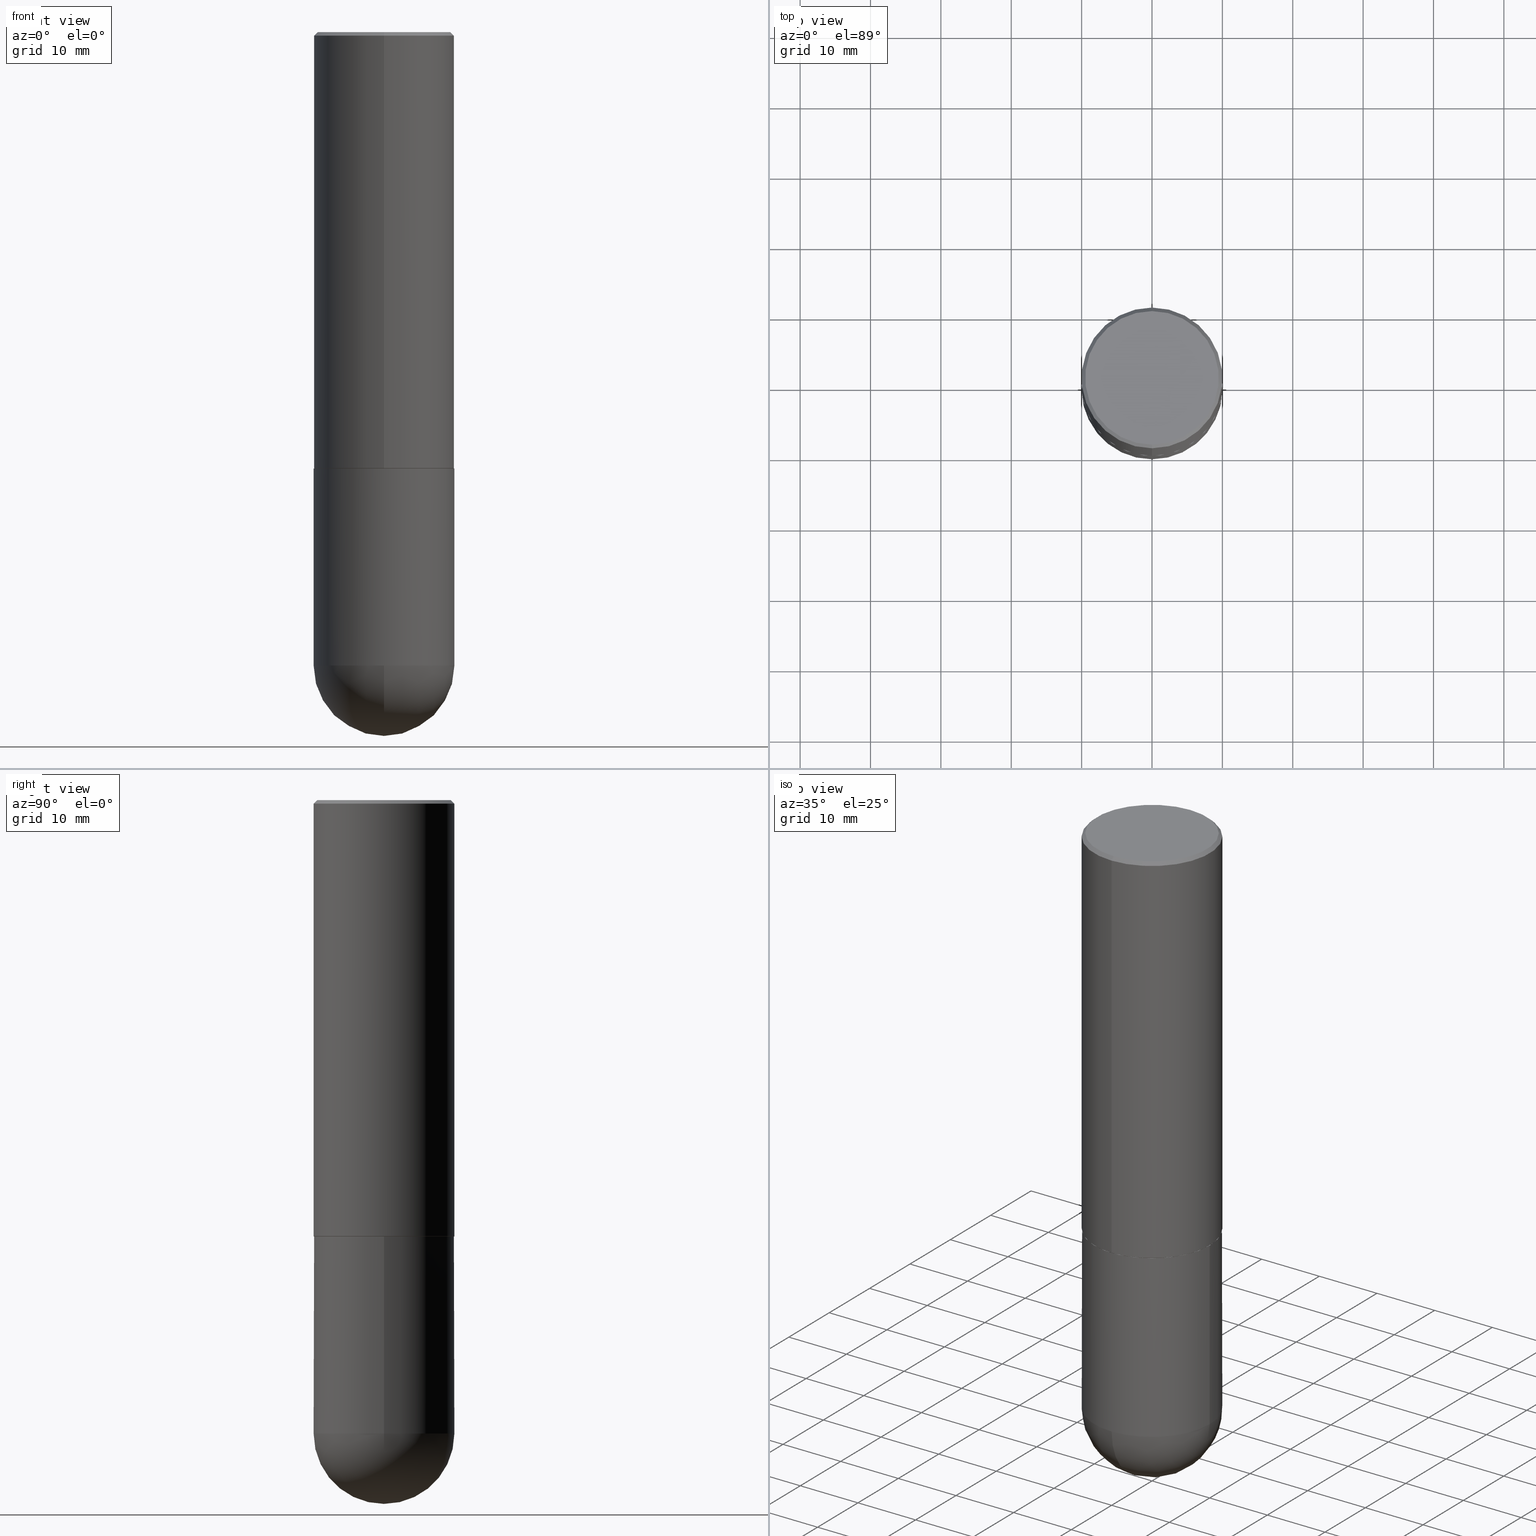
[diagram: canonical four-view strip — front | top / right | iso, engineering-drawing reading convention]
A machine part, canonical four-view strip (front | top / right | iso — engineering-drawing reading convention). The complete STEP part file that produces these views, byte-faithful:
ISO-10303-21;
HEADER;
FILE_DESCRIPTION (( 'STEP AP203' ),
    '1' );
FILE_NAME ('40382.STEP',
    '2024-04-10T11:41:13',
    ( '' ),
    ( '' ),
    'SwSTEP 2.0',
    'SolidWorks 2023',
    '' );
FILE_SCHEMA (( 'CONFIG_CONTROL_DESIGN' ));
ENDSEC;

DATA;
#1 = DIRECTION ( 'NONE',  ( 2.438088387897960049E-29, -3.491481338843145188E-15, -1.000000000000000000 ) ) ;
#2 = CARTESIAN_POINT ( 'NONE',  ( 0.000000000000000000, 0.000000000000000000, 0.000000000000000000 ) ) ;
#3 = ORIENTED_EDGE ( 'NONE', *, *, #237, .F. ) ;
#4 = FACE_OUTER_BOUND ( 'NONE', #405, .T. ) ;
#5 = CC_DESIGN_DATE_AND_TIME_ASSIGNMENT ( #190, #347, ( #282 ) ) ;
#6 = AXIS2_PLACEMENT_3D ( 'NONE', #310, #59, #408 ) ;
#7 = CIRCLE ( 'NONE', #30, 0.3937000000000001054 ) ;
#8 = CARTESIAN_POINT ( 'NONE',  ( 5.964323196596631600E-29, -8.522268091541027042E-15, -2.439900000000000180 ) ) ;
#9 = ORIENTED_EDGE ( 'NONE', *, *, #230, .F. ) ;
#10 = CARTESIAN_POINT ( 'NONE',  ( -2.749192406205025235E-15, -0.3937000000000088207, -2.439899999999998847 ) ) ;
#11 = DATE_AND_TIME ( #174, #74 ) ;
#12 = EDGE_CURVE ( 'NONE', #219, #132, #209, .T. ) ;
#13 = MECHANICAL_CONTEXT ( 'NONE', #255, 'mechanical' ) ;
#14 = AXIS2_PLACEMENT_3D ( 'NONE', #231, #171, #197 ) ;
#15 = CARTESIAN_POINT ( 'NONE',  ( 0.000000000000000000, 0.000000000000000000, 0.000000000000000000 ) ) ;
#16 = PERSON_AND_ORGANIZATION ( #376, #101 ) ;
#17 = PRODUCT_DEFINITION ( 'UNKNOWN', '', #196, #96 ) ;
#18 = PRODUCT_DEFINITION_SHAPE ( 'NONE', 'NONE',  #17 ) ;
#19 = COORDINATED_UNIVERSAL_TIME_OFFSET ( 5, 0, .BEHIND. ) ;
#20 = VECTOR ( 'NONE', #289, 39.37007874015748854 ) ;
#21 = VECTOR ( 'NONE', #320, 39.37007874015748854 ) ;
#22 = ORIENTED_EDGE ( 'NONE', *, *, #385, .F. ) ;
#23 = DATE_AND_TIME ( #181, #188 ) ;
#24 = CARTESIAN_POINT ( 'NONE',  ( 8.333909843041907822E-29, -1.284554819606296579E-14, -3.543299999999999894 ) ) ;
#25 = ORIENTED_EDGE ( 'NONE', *, *, #111, .T. ) ;
#26 = ADVANCED_FACE ( 'NONE', ( #198 ), #389, .T. ) ;
#27 = DIRECTION ( 'NONE',  ( -2.444494936922263557E-29, 3.492875975056775902E-15, 1.000000000000000000 ) ) ;
#28 = CARTESIAN_POINT ( 'NONE',  ( -0.3937000000000000499, -7.649454563265061811E-15, -2.440900000000000070 ) ) ;
#29 = VECTOR ( 'NONE', #62, 39.37007874015748143 ) ;
#30 = AXIS2_PLACEMENT_3D ( 'NONE', #294, #260, #140 ) ;
#31 = ORIENTED_EDGE ( 'NONE', *, *, #12, .T. ) ;
#32 = CARTESIAN_POINT ( 'NONE',  ( 8.333909843041907822E-29, -1.284554819606296579E-14, -3.543299999999999894 ) ) ;
#33 = EDGE_LOOP ( 'NONE', ( #374, #341, #109, #382 ) ) ;
#34 = CARTESIAN_POINT ( 'NONE',  ( -2.749192406205084005E-15, -0.3937000000000001609, 1.375145271379853145E-15 ) ) ;
#35 = ORIENTED_EDGE ( 'NONE', *, *, #309, .F. ) ;
#36 = DIRECTION ( 'NONE',  ( 1.000000000000000000, -6.982962677686267499E-15, 0.000000000000000000 ) ) ;
#37 = AXIS2_PLACEMENT_3D ( 'NONE', #24, #212, #283 ) ;
#38 = AXIS2_PLACEMENT_3D ( 'NONE', #326, #386, #36 ) ;
#39 = DIRECTION ( 'NONE',  ( -2.444494936922263557E-29, 3.492875975056775902E-15, 1.000000000000000000 ) ) ;
#40 = DIRECTION ( 'NONE',  ( -2.444494936922262996E-29, 3.492875975056776297E-15, 1.000000000000000000 ) ) ;
#41 = CARTESIAN_POINT ( 'NONE',  ( 2.749192406205083217E-15, 0.3936999999999999389, -0.02000000000000146452 ) ) ;
#42 = ORIENTED_EDGE ( 'NONE', *, *, #311, .F. ) ;
#43 = AXIS2_PLACEMENT_3D ( 'NONE', #194, #1, #296 ) ;
#44 = PLANE ( 'NONE',  #43 ) ;
#45 = CARTESIAN_POINT ( 'NONE',  ( 0.3937000000000001054, -1.319605372015766376E-14, -3.543299999999999450 ) ) ;
#46 = VERTEX_POINT ( 'NONE', #45 ) ;
#47 = APPROVAL_STATUS ( 'not_yet_approved' ) ;
#48 =( NAMED_UNIT ( * ) SI_UNIT ( $, .STERADIAN. ) SOLID_ANGLE_UNIT ( ) );
#49 = CALENDAR_DATE ( 2024, 10, 4 ) ;
#50 = AXIS2_PLACEMENT_3D ( 'NONE', #108, #399, #398 ) ;
#51 = DIRECTION ( 'NONE',  ( -2.444494936922263557E-29, 3.492875975056775902E-15, 1.000000000000000000 ) ) ;
#52 = DATE_AND_TIME ( #397, #69 ) ;
#53 = CARTESIAN_POINT ( 'NONE',  ( -0.3937000000000001054, -7.649454563265064966E-15, -3.543299999999999450 ) ) ;
#54 = CIRCLE ( 'NONE', #38, 0.3937000000000000499 ) ;
#55 = ORIENTED_EDGE ( 'NONE', *, *, #184, .F. ) ;
#56 = CARTESIAN_POINT ( 'NONE',  ( 2.749192406205169202E-15, 0.3936999999999876709, -3.543300000000000782 ) ) ;
#57 = EDGE_LOOP ( 'NONE', ( #242, #116 ) ) ;
#58 = DIRECTION ( 'NONE',  ( -6.982962677686265922E-15, -1.000000000000000000, 3.469453890861393601E-15 ) ) ;
#59 = DIRECTION ( 'NONE',  ( -2.444494936922263557E-29, 3.492875975056775902E-15, 1.000000000000000000 ) ) ;
#60 = AXIS2_PLACEMENT_3D ( 'NONE', #367, #51, #305 ) ;
#61 = AXIS2_PLACEMENT_3D ( 'NONE', #258, #39, #73 ) ;
#62 = DIRECTION ( 'NONE',  ( -4.851104656540961908E-15, -0.7071067811865496822, -0.7071067811865453523 ) ) ;
#63 = PRODUCT_RELATED_PRODUCT_CATEGORY ( 'detail', '', ( #114 ) ) ;
#64 = ORIENTED_EDGE ( 'NONE', *, *, #274, .F. ) ;
#65 = ORIENTED_EDGE ( 'NONE', *, *, #120, .T. ) ;
#66 = CARTESIAN_POINT ( 'NONE',  ( 0.3937000000000001054, -2.749192406205084005E-15, 1.919750796630860452E-29 ) ) ;
#67 = CARTESIAN_POINT ( 'NONE',  ( 0.000000000000000000, 0.000000000000000000, 0.000000000000000000 ) ) ;
#68 = AXIS2_PLACEMENT_3D ( 'NONE', #287, #27, #243 ) ;
#69 = LOCAL_TIME ( 7, 41, 13.00000000000000000, #241 ) ;
#70 = DIRECTION ( 'NONE',  ( -2.445468806185136597E-29, 3.491481338843145583E-15, 1.000000000000000000 ) ) ;
#71 = DIRECTION ( 'NONE',  ( 1.000000000000000000, -6.982962677686266711E-15, 0.000000000000000000 ) ) ;
#72 = DIRECTION ( 'NONE',  ( 1.000000000000000000, -6.982962677686266711E-15, 0.000000000000000000 ) ) ;
#73 = DIRECTION ( 'NONE',  ( -6.982962677686265133E-15, -1.000000000000000000, 3.478288761986584267E-15 ) ) ;
#74 = LOCAL_TIME ( 7, 41, 13.00000000000000000, #110 ) ;
#75 =( NAMED_UNIT ( * ) PLANE_ANGLE_UNIT ( ) SI_UNIT ( $, .RADIAN. ) );
#76 = PERSON_AND_ORGANIZATION ( #376, #101 ) ;
#77 = APPROVAL ( #146, 'UNSPECIFIED' ) ;
#78 = AXIS2_PLACEMENT_3D ( 'NONE', #157, #90, #187 ) ;
#79 = AXIS2_PLACEMENT_3D ( 'NONE', #15, #177, #239 ) ;
#80 = DIRECTION ( 'NONE',  ( 2.444494936922263557E-29, -3.492875975056775902E-15, -1.000000000000000000 ) ) ;
#81 = ORIENTED_EDGE ( 'NONE', *, *, #332, .F. ) ;
#82 = APPROVAL_ROLE ( '' ) ;
#84 = ADVANCED_FACE ( 'NONE', ( #324 ), #172, .T. ) ;
#83 = DIRECTION ( 'NONE',  ( 6.982962677686265133E-15, 1.000000000000000000, -3.491137977679279424E-15 ) ) ;
#85 = APPROVAL_PERSON_ORGANIZATION ( #234, #199, #145 ) ;
#86 = APPROVAL_DATE_TIME ( #23, #138 ) ;
#87 = ADVANCED_FACE ( 'NONE', ( #317 ), #353, .T. ) ;
#88 = LINE ( 'NONE', #180, #29 ) ;
#89 = VERTEX_POINT ( 'NONE', #220 ) ;
#90 = DIRECTION ( 'NONE',  ( -2.444494936922263557E-29, 3.492875975056775902E-15, 1.000000000000000000 ) ) ;
#91 = ORIENTED_EDGE ( 'NONE', *, *, #279, .F. ) ;
#92 = DIRECTION ( 'NONE',  ( 6.982962677686265133E-15, 1.000000000000000000, 0.000000000000000000 ) ) ;
#93 = CONICAL_SURFACE ( 'NONE', #148, 0.3937000000000000499, 0.7853981633974479459 ) ;
#94 = EDGE_LOOP ( 'NONE', ( #119, #300 ) ) ;
#95 = DIRECTION ( 'NONE',  ( 1.000000000000000000, -6.982962677686266711E-15, 4.876176775795935793E-29 ) ) ;
#96 = DESIGN_CONTEXT ( 'detailed design', #136, 'design' ) ;
#97 = CARTESIAN_POINT ( 'NONE',  ( 5.966767691533553792E-29, -8.525760967516085802E-15, -2.440900000000000514 ) ) ;
#98 = EDGE_CURVE ( 'NONE', #183, #236, #134, .T. ) ;
#99 = DIRECTION ( 'NONE',  ( -2.444494936922263557E-29, 3.492875975056775902E-15, 1.000000000000000000 ) ) ;
#100 = DIRECTION ( 'NONE',  ( -6.982962677686265133E-15, -1.000000000000000000, 3.478288761986584267E-15 ) ) ;
#101 = ORGANIZATION ( 'UNSPECIFIED', 'UNSPECIFIED', '' ) ;
#102 = DIRECTION ( 'NONE',  ( -2.444494936922263557E-29, 3.492875975056775902E-15, 1.000000000000000000 ) ) ;
#103 = ORIENTED_EDGE ( 'NONE', *, *, #235, .F. ) ;
#104 = DIRECTION ( 'NONE',  ( -2.445468806185136597E-29, 3.491481338843145583E-15, 1.000000000000000000 ) ) ;
#105 = ORIENTED_EDGE ( 'NONE', *, *, #12, .F. ) ;
#106 = CIRCLE ( 'NONE', #390, 0.3937000000000000499 ) ;
#107 = CIRCLE ( 'NONE', #228, 0.3937000000000001054 ) ;
#108 = CARTESIAN_POINT ( 'NONE',  ( 8.333909843041907822E-29, -1.284554819606296579E-14, -3.543299999999999894 ) ) ;
#109 = ORIENTED_EDGE ( 'NONE', *, *, #120, .F. ) ;
#110 = COORDINATED_UNIVERSAL_TIME_OFFSET ( 5, 0, .BEHIND. ) ;
#111 = EDGE_CURVE ( 'NONE', #133, #409, #88, .T. ) ;
#112 = AXIS2_PLACEMENT_3D ( 'NONE', #411, #290, #217 ) ;
#113 = APPROVAL_ROLE ( '' ) ;
#114 = PRODUCT ( '40382', '40382', '', ( #13 ) ) ;
#115 = APPROVAL_STATUS ( 'not_yet_approved' ) ;
#116 = ORIENTED_EDGE ( 'NONE', *, *, #155, .T. ) ;
#117 = ADVANCED_FACE ( 'NONE', ( #410 ), #245, .T. ) ;
#118 = LINE ( 'NONE', #185, #127 ) ;
#119 = ORIENTED_EDGE ( 'NONE', *, *, #385, .T. ) ;
#120 = EDGE_CURVE ( 'NONE', #349, #89, #252, .T. ) ;
#121 = DIRECTION ( 'NONE',  ( -2.444494936922263557E-29, 3.492875975056776297E-15, 1.000000000000000000 ) ) ;
#122 = APPROVAL_PERSON_ORGANIZATION ( #16, #77, #113 ) ;
#123 = DIRECTION ( 'NONE',  ( 1.000000000000000000, -6.982962677686265922E-15, 4.883557194083112340E-29 ) ) ;
#124 = PERSON_AND_ORGANIZATION ( #376, #101 ) ;
#125 = FACE_OUTER_BOUND ( 'NONE', #351, .T. ) ;
#126 = CARTESIAN_POINT ( 'NONE',  ( 5.964323196596631600E-29, -8.522268091541027042E-15, -2.439900000000000180 ) ) ;
#127 = VECTOR ( 'NONE', #159, 39.37007874015748143 ) ;
#128 = AXIS2_PLACEMENT_3D ( 'NONE', #322, #40, #225 ) ;
#129 = EDGE_LOOP ( 'NONE', ( #284, #25, #292, #186 ) ) ;
#130 = DIRECTION ( 'NONE',  ( -2.445468806185136877E-29, 3.491481338843145188E-15, 1.000000000000000000 ) ) ;
#131 = DIRECTION ( 'NONE',  ( 1.000000000000000000, -6.982962677686266711E-15, 4.876176775795935793E-29 ) ) ;
#132 = VERTEX_POINT ( 'NONE', #254 ) ;
#133 = VERTEX_POINT ( 'NONE', #404 ) ;
#134 = CIRCLE ( 'NONE', #297, 0.3937000000000000499 ) ;
#135 = AXIS2_PLACEMENT_3D ( 'NONE', #8, #102, #227 ) ;
#136 = APPLICATION_CONTEXT ( 'configuration controlled 3d designs of mechanical parts and assemblies' ) ;
#137 = LINE ( 'NONE', #166, #170 ) ;
#138 = APPROVAL ( #115, 'UNSPECIFIED' ) ;
#139 = EDGE_LOOP ( 'NONE', ( #359, #161, #223, #103 ) ) ;
#140 = DIRECTION ( 'NONE',  ( 1.000000000000000000, -6.982962677686266711E-15, 0.000000000000000000 ) ) ;
#141 = SPHERICAL_SURFACE ( 'NONE', #50, 0.3937000000000003830 ) ;
#142 = CIRCLE ( 'NONE', #68, 0.3737000000000001432 ) ;
#143 = AXIS2_PLACEMENT_3D ( 'NONE', #2, #192, #131 ) ;
#144 = PERSON_AND_ORGANIZATION ( #376, #101 ) ;
#145 = APPROVAL_ROLE ( '' ) ;
#146 = APPROVAL_STATUS ( 'not_yet_approved' ) ;
#147 = CIRCLE ( 'NONE', #288, 0.3937000000000003830 ) ;
#148 = AXIS2_PLACEMENT_3D ( 'NONE', #249, #80, #83 ) ;
#149 = CIRCLE ( 'NONE', #14, 0.3937000000000001054 ) ;
#150 = CARTESIAN_POINT ( 'NONE',  ( 5.969144809017300159E-29, -8.522356799982234543E-15, -2.440900000000000070 ) ) ;
#151 = ORIENTED_EDGE ( 'NONE', *, *, #311, .T. ) ;
#152 = FACE_OUTER_BOUND ( 'NONE', #57, .T. ) ;
#153 = AXIS2_PLACEMENT_3D ( 'NONE', #388, #357, #71 ) ;
#154 = DIRECTION ( 'NONE',  ( -1.000000000000000000, 6.982962677686265922E-15, -4.883557194083112340E-29 ) ) ;
#155 = EDGE_CURVE ( 'NONE', #133, #293, #345, .T. ) ;
#156 = ORIENTED_EDGE ( 'NONE', *, *, #98, .F. ) ;
#157 = CARTESIAN_POINT ( 'NONE',  ( 4.888989873844550270E-31, -6.985751950113581979E-17, -0.02000000000000009062 ) ) ;
#158 = ORIENTED_EDGE ( 'NONE', *, *, #164, .F. ) ;
#159 = DIRECTION ( 'NONE',  ( -2.445468806185136877E-29, 3.491481338843145188E-15, 1.000000000000000000 ) ) ;
#160 = ORIENTED_EDGE ( 'NONE', *, *, #195, .F. ) ;
#161 = ORIENTED_EDGE ( 'NONE', *, *, #270, .T. ) ;
#162 = FACE_OUTER_BOUND ( 'NONE', #308, .T. ) ;
#163 =( GEOMETRIC_REPRESENTATION_CONTEXT ( 3 ) GLOBAL_UNCERTAINTY_ASSIGNED_CONTEXT ( ( #395 ) ) GLOBAL_UNIT_ASSIGNED_CONTEXT ( ( #273, #75, #48 ) ) REPRESENTATION_CONTEXT ( 'NONE', 'WORKASPACE' ) );
#164 = EDGE_CURVE ( 'NONE', #219, #183, #118, .T. ) ;
#165 = DIRECTION ( 'NONE',  ( -6.982962677686265133E-15, -1.000000000000000000, 3.478288761986584267E-15 ) ) ;
#166 = CARTESIAN_POINT ( 'NONE',  ( 2.797406750687515181E-15, 0.3937000000000001609, -1.375145271379853145E-15 ) ) ;
#167 = DIRECTION ( 'NONE',  ( 4.937700262164545676E-15, 0.7071067811865447972, -0.7071067811865502373 ) ) ;
#168 = ADVANCED_FACE ( 'NONE', ( #371 ), #314, .T. ) ;
#169 = CIRCLE ( 'NONE', #37, 0.3937000000000003830 ) ;
#170 = VECTOR ( 'NONE', #352, 39.37007874015748143 ) ;
#171 = DIRECTION ( 'NONE',  ( -2.445468806185136597E-29, 3.491481338843145583E-15, 1.000000000000000000 ) ) ;
#172 = CYLINDRICAL_SURFACE ( 'NONE', #60, 0.3937000000000001609 ) ;
#173 = EDGE_LOOP ( 'NONE', ( #158, #31, #265, #250, #156 ) ) ;
#174 = CALENDAR_DATE ( 2024, 10, 4 ) ;
#175 = PERSON_AND_ORGANIZATION ( #376, #101 ) ;
#176 = CARTESIAN_POINT ( 'NONE',  ( 5.966767691533553792E-29, -8.525760967516085802E-15, -2.440900000000000514 ) ) ;
#177 = DIRECTION ( 'NONE',  ( 0.000000000000000000, 0.000000000000000000, 1.000000000000000000 ) ) ;
#178 = DATE_TIME_ROLE ( 'creation_date' ) ;
#179 = APPROVAL_PERSON_ORGANIZATION ( #124, #138, #82 ) ;
#180 = CARTESIAN_POINT ( 'NONE',  ( -2.700978061722651252E-15, -0.3937000000000001054, -0.01999999999999871672 ) ) ;
#181 = CALENDAR_DATE ( 2024, 10, 4 ) ;
#182 = CARTESIAN_POINT ( 'NONE',  ( 2.609533152651358592E-15, 0.3737000000000001432, -1.413874232599761583E-15 ) ) ;
#183 = VERTEX_POINT ( 'NONE', #28 ) ;
#184 = EDGE_CURVE ( 'NONE', #409, #344, #261, .T. ) ;
#185 = CARTESIAN_POINT ( 'NONE',  ( -0.3937000000000001054, 2.797406750687515181E-15, -1.936584745033357016E-29 ) ) ;
#186 = ORIENTED_EDGE ( 'NONE', *, *, #356, .F. ) ;
#187 = DIRECTION ( 'NONE',  ( -6.982962677686265133E-15, -1.000000000000000000, 3.491137977679279424E-15 ) ) ;
#188 = LOCAL_TIME ( 7, 41, 13.00000000000000000, #216 ) ;
#189 = ORIENTED_EDGE ( 'NONE', *, *, #235, .T. ) ;
#190 = DATE_AND_TIME ( #49, #298 ) ;
#191 = DIRECTION ( 'NONE',  ( 6.982962677686265922E-15, 1.000000000000000000, -3.492875975056776297E-15 ) ) ;
#192 = DIRECTION ( 'NONE',  ( -2.445468806185136597E-29, 3.491481338843145583E-15, 1.000000000000000000 ) ) ;
#193 = EDGE_CURVE ( 'NONE', #213, #132, #169, .T. ) ;
#194 = CARTESIAN_POINT ( 'NONE',  ( 2.749192406205142776E-15, 0.3936999999999915012, -2.440900000000001402 ) ) ;
#195 = EDGE_CURVE ( 'NONE', #293, #133, #142, .T. ) ;
#196 = PRODUCT_DEFINITION_FORMATION_WITH_SPECIFIED_SOURCE ( 'ANY', '', #114, .NOT_KNOWN. ) ;
#197 = DIRECTION ( 'NONE',  ( 1.000000000000000000, -6.982962677686266711E-15, 0.000000000000000000 ) ) ;
#198 = FACE_OUTER_BOUND ( 'NONE', #33, .T. ) ;
#199 = APPROVAL ( #47, 'UNSPECIFIED' ) ;
#200 = CYLINDRICAL_SURFACE ( 'NONE', #240, 0.3937000000000001054 ) ;
#201 = DIMENSIONAL_EXPONENTS ( 1.000000000000000000, 0.000000000000000000, 0.000000000000000000, 0.000000000000000000, 0.000000000000000000, 0.000000000000000000, 0.000000000000000000 ) ;
#202 = EDGE_LOOP ( 'NONE', ( #65, #278, #55, #3 ) ) ;
#203 = ADVANCED_FACE ( 'NONE', ( #125 ), #93, .T. ) ;
#204 = FACE_OUTER_BOUND ( 'NONE', #248, .T. ) ;
#205 = PERSON_AND_ORGANIZATION_ROLE ( 'creator' ) ;
#206 = PERSON_AND_ORGANIZATION_ROLE ( 'design_owner' ) ;
#207 = PERSON_AND_ORGANIZATION_ROLE ( 'classification_officer' ) ;
#208 = MANIFOLD_SOLID_BREP ( 'Body-Move/Copy2[1]', #281 ) ;
#209 = CIRCLE ( 'NONE', #153, 0.3937000000000001054 ) ;
#210 = CONICAL_SURFACE ( 'NONE', #263, 0.3926999999999999935, 0.7853981633974141952 ) ;
#211 = CC_DESIGN_PERSON_AND_ORGANIZATION_ASSIGNMENT ( #144, #238, ( #196 ) ) ;
#212 = DIRECTION ( 'NONE',  ( -1.000000000000000000, 7.105427357601001070E-15, -4.926315508542082329E-29 ) ) ;
#213 = VERTEX_POINT ( 'NONE', #348 ) ;
#214 = MANIFOLD_SOLID_BREP ( 'Body-Move/Copy2[2]', #333 ) ;
#215 = VECTOR ( 'NONE', #121, 39.37007874015748143 ) ;
#216 = COORDINATED_UNIVERSAL_TIME_OFFSET ( 5, 0, .BEHIND. ) ;
#217 = DIRECTION ( 'NONE',  ( -6.982962677686265922E-15, -1.000000000000000000, 3.492875975056775508E-15 ) ) ;
#218 = CARTESIAN_POINT ( 'NONE',  ( 8.333909843041907822E-29, -1.284554819606296579E-14, -3.543299999999999894 ) ) ;
#219 = VERTEX_POINT ( 'NONE', #53 ) ;
#220 = CARTESIAN_POINT ( 'NONE',  ( 2.797406750687545552E-15, 0.3936999999999917788, -2.439900000000001512 ) ) ;
#221 = VERTEX_POINT ( 'NONE', #56 ) ;
#222 = DIRECTION ( 'NONE',  ( 6.982962677686265922E-15, 1.000000000000000000, -4.163344669033671690E-15 ) ) ;
#223 = ORIENTED_EDGE ( 'NONE', *, *, #237, .T. ) ;
#224 = ADVANCED_FACE ( 'NONE', ( #152 ), #378, .F. ) ;
#225 = DIRECTION ( 'NONE',  ( -6.982962677686265922E-15, -1.000000000000000000, 3.492875975056776297E-15 ) ) ;
#226 = CARTESIAN_POINT ( 'NONE',  ( 8.665029620955792948E-29, -1.237136582792291707E-14, -3.543299999999999450 ) ) ;
#227 = DIRECTION ( 'NONE',  ( -6.982962677686265922E-15, -1.000000000000000000, 3.469453890861393601E-15 ) ) ;
#228 = AXIS2_PLACEMENT_3D ( 'NONE', #226, #104, #72 ) ;
#229 = ORIENTED_EDGE ( 'NONE', *, *, #164, .T. ) ;
#230 = EDGE_CURVE ( 'NONE', #213, #221, #147, .T. ) ;
#231 = CARTESIAN_POINT ( 'NONE',  ( 8.665029620955792948E-29, -1.237136582792291707E-14, -3.543299999999999450 ) ) ;
#232 = LINE ( 'NONE', #391, #21 ) ;
#233 = AXIS2_PLACEMENT_3D ( 'NONE', #32, #154, #222 ) ;
#234 = PERSON_AND_ORGANIZATION ( #376, #101 ) ;
#235 = EDGE_CURVE ( 'NONE', #344, #409, #106, .T. ) ;
#236 = VERTEX_POINT ( 'NONE', #406 ) ;
#237 = EDGE_CURVE ( 'NONE', #349, #409, #319, .T. ) ;
#238 = PERSON_AND_ORGANIZATION_ROLE ( 'design_supplier' ) ;
#239 = DIRECTION ( 'NONE',  ( 1.000000000000000000, 0.000000000000000000, 0.000000000000000000 ) ) ;
#240 = AXIS2_PLACEMENT_3D ( 'NONE', #67, #70, #95 ) ;
#241 = COORDINATED_UNIVERSAL_TIME_OFFSET ( 5, 0, .BEHIND. ) ;
#242 = ORIENTED_EDGE ( 'NONE', *, *, #195, .T. ) ;
#243 = DIRECTION ( 'NONE',  ( -6.982962677686265922E-15, -1.000000000000000000, 3.492875975056776297E-15 ) ) ;
#244 = VERTEX_POINT ( 'NONE', #246 ) ;
#245 = CONICAL_SURFACE ( 'NONE', #400, 0.3937000000000000499, 0.7853981633974479459 ) ;
#246 = CARTESIAN_POINT ( 'NONE',  ( 2.793854037008774630E-15, 0.3926999999999915003, -2.440900000000001846 ) ) ;
#247 = DIRECTION ( 'NONE',  ( -2.444494936922263557E-29, 3.492875975056775902E-15, 1.000000000000000000 ) ) ;
#248 = EDGE_LOOP ( 'NONE', ( #387, #229, #22, #91, #363 ) ) ;
#249 = CARTESIAN_POINT ( 'NONE',  ( 4.888989873844550270E-31, -6.985751950113581979E-17, -0.02000000000000009062 ) ) ;
#250 = ORIENTED_EDGE ( 'NONE', *, *, #279, .T. ) ;
#251 = CC_DESIGN_PERSON_AND_ORGANIZATION_ASSIGNMENT ( #271, #206, ( #114 ) ) ;
#252 = CIRCLE ( 'NONE', #275, 0.3937000000000002720 ) ;
#253 = CIRCLE ( 'NONE', #321, 0.3926999999999999935 ) ;
#254 = CARTESIAN_POINT ( 'NONE',  ( -2.797406750687430773E-15, -0.3937000000000128175, -3.543299999999997674 ) ) ;
#255 = APPLICATION_CONTEXT ( 'configuration controlled 3d designs of mechanical parts and assemblies' ) ;
#256 = ADVANCED_FACE ( 'NONE', ( #373 ), #375, .F. ) ;
#257 = FACE_OUTER_BOUND ( 'NONE', #94, .T. ) ;
#258 = CARTESIAN_POINT ( 'NONE',  ( 5.966767691533553792E-29, -8.525760967516085802E-15, -2.440900000000000514 ) ) ;
#259 = ORIENTED_EDGE ( 'NONE', *, *, #270, .F. ) ;
#260 = DIRECTION ( 'NONE',  ( -2.445468806185136597E-29, 3.491481338843145583E-15, 1.000000000000000000 ) ) ;
#261 = CIRCLE ( 'NONE', #78, 0.3937000000000000499 ) ;
#262 = ADVANCED_FACE ( 'NONE', ( #257 ), #44, .F. ) ;
#263 = AXIS2_PLACEMENT_3D ( 'NONE', #97, #99, #323 ) ;
#264 = CARTESIAN_POINT ( 'NONE',  ( 2.679362779428221102E-15, 0.3737000000000001432, -1.522460713320805199E-15 ) ) ;
#265 = ORIENTED_EDGE ( 'NONE', *, *, #332, .T. ) ;
#266 = CALENDAR_DATE ( 2024, 10, 4 ) ;
#267 =( LENGTH_UNIT ( ) NAMED_UNIT ( * ) SI_UNIT ( $, .METRE. ) );
#268 = AXIS2_PLACEMENT_3D ( 'NONE', #176, #327, #100 ) ;
#269 = EDGE_LOOP ( 'NONE', ( #9, #313, #105, #64 ) ) ;
#270 = EDGE_CURVE ( 'NONE', #89, #349, #369, .T. ) ;
#271 = PERSON_AND_ORGANIZATION ( #376, #101 ) ;
#272 = CC_DESIGN_PERSON_AND_ORGANIZATION_ASSIGNMENT ( #175, #205, ( #17 ) ) ;
#273 =( CONVERSION_BASED_UNIT ( 'INCH', #370 ) LENGTH_UNIT ( ) NAMED_UNIT ( #201 ) );
#274 = EDGE_CURVE ( 'NONE', #221, #219, #149, .T. ) ;
#275 = AXIS2_PLACEMENT_3D ( 'NONE', #126, #312, #58 ) ;
#276 = ORIENTED_EDGE ( 'NONE', *, *, #356, .T. ) ;
#277 = DIRECTION ( 'NONE',  ( -6.982962677686265133E-15, -1.000000000000000000, 3.491137977679279424E-15 ) ) ;
#278 = ORIENTED_EDGE ( 'NONE', *, *, #304, .T. ) ;
#279 = EDGE_CURVE ( 'NONE', #46, #236, #299, .T. ) ;
#280 = DIRECTION ( 'NONE',  ( 2.444494936922262996E-29, -3.492875975056776297E-15, -1.000000000000000000 ) ) ;
#281 = CLOSED_SHELL ( 'NONE', ( #383, #168, #402, #262, #339 ) ) ;
#282 = SECURITY_CLASSIFICATION ( '', '', #368 ) ;
#283 = DIRECTION ( 'NONE',  ( -7.105427357600999492E-15, -1.000000000000000000, 0.000000000000000000 ) ) ;
#284 = ORIENTED_EDGE ( 'NONE', *, *, #155, .F. ) ;
#285 = CC_DESIGN_PERSON_AND_ORGANIZATION_ASSIGNMENT ( #329, #366, ( #196 ) ) ;
#286 = ORIENTED_EDGE ( 'NONE', *, *, #193, .F. ) ;
#287 = CARTESIAN_POINT ( 'NONE',  ( 5.308782046815965529E-45, -7.585582194529983900E-31, -2.171729614420873553E-16 ) ) ;
#288 = AXIS2_PLACEMENT_3D ( 'NONE', #218, #123, #92 ) ;
#289 = DIRECTION ( 'NONE',  ( 5.024295867787889629E-15, 0.7071067811865257013, 0.7071067811865691111 ) ) ;
#290 = DIRECTION ( 'NONE',  ( -2.444494936922263557E-29, 3.492875975056775902E-15, 1.000000000000000000 ) ) ;
#291 = CYLINDRICAL_SURFACE ( 'NONE', #143, 0.3937000000000001054 ) ;
#292 = ORIENTED_EDGE ( 'NONE', *, *, #184, .T. ) ;
#293 = VERTEX_POINT ( 'NONE', #264 ) ;
#294 = CARTESIAN_POINT ( 'NONE',  ( 8.665029620955792948E-29, -1.237136582792291707E-14, -3.543299999999999450 ) ) ;
#295 = ORIENTED_EDGE ( 'NONE', *, *, #335, .T. ) ;
#296 = DIRECTION ( 'NONE',  ( -1.000000000000000000, 6.982962677686265922E-15, -4.876176775795935793E-29 ) ) ;
#297 = AXIS2_PLACEMENT_3D ( 'NONE', #150, #412, #340 ) ;
#298 = LOCAL_TIME ( 7, 41, 13.00000000000000000, #331 ) ;
#299 = LINE ( 'NONE', #66, #380 ) ;
#300 = ORIENTED_EDGE ( 'NONE', *, *, #98, .T. ) ;
#301 = APPROVAL_DATE_TIME ( #394, #199 ) ;
#302 = APPLICATION_PROTOCOL_DEFINITION ( 'international standard', 'config_control_design', 1994, #255 ) ;
#303 = LOCAL_TIME ( 7, 41, 13.00000000000000000, #19 ) ;
#304 = EDGE_CURVE ( 'NONE', #89, #344, #137, .T. ) ;
#305 = DIRECTION ( 'NONE',  ( -6.982962677686265922E-15, -1.000000000000000000, 3.492875975056775508E-15 ) ) ;
#306 = APPLICATION_PROTOCOL_DEFINITION ( 'international standard', 'config_control_design', 1994, #136 ) ;
#307 = CIRCLE ( 'NONE', #61, 0.3926999999999999935 ) ;
#308 = EDGE_LOOP ( 'NONE', ( #35, #151, #295, #259 ) ) ;
#309 = EDGE_CURVE ( 'NONE', #244, #89, #358, .T. ) ;
#310 = CARTESIAN_POINT ( 'NONE',  ( 5.308782046815965529E-45, -7.585582194529983900E-31, -2.171729614420873553E-16 ) ) ;
#311 = EDGE_CURVE ( 'NONE', #244, #318, #307, .T. ) ;
#312 = DIRECTION ( 'NONE',  ( -2.444494936922263557E-29, 3.492875975056775902E-15, 1.000000000000000000 ) ) ;
#313 = ORIENTED_EDGE ( 'NONE', *, *, #193, .T. ) ;
#314 = SPHERICAL_SURFACE ( 'NONE', #233, 0.3937000000000003830 ) ;
#315 = CC_DESIGN_SECURITY_CLASSIFICATION ( #282, ( #196 ) ) ;
#316 = DIRECTION ( 'NONE',  ( 6.982962677686265133E-15, 1.000000000000000000, -3.491137977679279424E-15 ) ) ;
#317 = FACE_OUTER_BOUND ( 'NONE', #202, .T. ) ;
#318 = VERTEX_POINT ( 'NONE', #362 ) ;
#319 = LINE ( 'NONE', #34, #215 ) ;
#320 = DIRECTION ( 'NONE',  ( -4.937700262164378437E-15, -0.7071067811865208164, 0.7071067811865739960 ) ) ;
#321 = AXIS2_PLACEMENT_3D ( 'NONE', #393, #384, #165 ) ;
#322 = CARTESIAN_POINT ( 'NONE',  ( 5.966767691533553792E-29, -8.525760967516084225E-15, -2.440900000000000070 ) ) ;
#323 = DIRECTION ( 'NONE',  ( -6.982962677686265133E-15, -1.000000000000000000, 3.478288761986584267E-15 ) ) ;
#324 = FACE_OUTER_BOUND ( 'NONE', #139, .T. ) ;
#325 = LINE ( 'NONE', #381, #407 ) ;
#326 = CARTESIAN_POINT ( 'NONE',  ( 5.969144809017300159E-29, -8.522356799982234543E-15, -2.440900000000000070 ) ) ;
#327 = DIRECTION ( 'NONE',  ( -2.444494936922263557E-29, 3.492875975056775902E-15, 1.000000000000000000 ) ) ;
#328 = EDGE_CURVE ( 'NONE', #46, #221, #7, .T. ) ;
#329 = PERSON_AND_ORGANIZATION ( #376, #101 ) ;
#330 = APPROVAL_DATE_TIME ( #11, #77 ) ;
#331 = COORDINATED_UNIVERSAL_TIME_OFFSET ( 5, 0, .BEHIND. ) ;
#332 = EDGE_CURVE ( 'NONE', #132, #46, #107, .T. ) ;
#333 = CLOSED_SHELL ( 'NONE', ( #26, #87, #117, #203, #84, #401, #256, #224 ) ) ;
#334 = CC_DESIGN_APPROVAL ( #138, ( #282 ) ) ;
#335 = EDGE_CURVE ( 'NONE', #318, #349, #232, .T. ) ;
#336 = CARTESIAN_POINT ( 'NONE',  ( -2.700978061722651252E-15, -0.3937000000000001054, -0.01999999999999871672 ) ) ;
#337 = SHAPE_DEFINITION_REPRESENTATION ( #18, #360 ) ;
#338 = CARTESIAN_POINT ( 'NONE',  ( 4.888989873844550270E-31, -6.985751950113581979E-17, -0.02000000000000009062 ) ) ;
#339 = ADVANCED_FACE ( 'NONE', ( #350 ), #200, .T. ) ;
#340 = DIRECTION ( 'NONE',  ( 1.000000000000000000, -6.982962677686267499E-15, 0.000000000000000000 ) ) ;
#341 = ORIENTED_EDGE ( 'NONE', *, *, #309, .T. ) ;
#342 = DIRECTION ( 'NONE',  ( 2.444494936922263557E-29, -3.492875975056775902E-15, -1.000000000000000000 ) ) ;
#343 = CARTESIAN_POINT ( 'NONE',  ( 4.888989873844550270E-31, -6.985751950113581979E-17, -0.02000000000000009062 ) ) ;
#344 = VERTEX_POINT ( 'NONE', #41 ) ;
#345 = CIRCLE ( 'NONE', #6, 0.3737000000000001432 ) ;
#346 = ORIENTED_EDGE ( 'NONE', *, *, #230, .T. ) ;
#347 = DATE_TIME_ROLE ( 'classification_date' ) ;
#348 = CARTESIAN_POINT ( 'NONE',  ( 9.313524860439493426E-29, -1.419603722692429674E-14, -3.937000000000000277 ) ) ;
#349 = VERTEX_POINT ( 'NONE', #10 ) ;
#350 = FACE_OUTER_BOUND ( 'NONE', #173, .T. ) ;
#351 = EDGE_LOOP ( 'NONE', ( #365, #160, #276, #189 ) ) ;
#352 = DIRECTION ( 'NONE',  ( -2.444494936922263557E-29, 3.492875975056776297E-15, 1.000000000000000000 ) ) ;
#353 = CYLINDRICAL_SURFACE ( 'NONE', #112, 0.3937000000000001609 ) ;
#354 = CC_DESIGN_APPROVAL ( #199, ( #196 ) ) ;
#355 = CARTESIAN_POINT ( 'NONE',  ( 2.790301323329972943E-15, 0.3926999999999915003, -2.440900000000001846 ) ) ;
#356 = EDGE_CURVE ( 'NONE', #293, #344, #325, .T. ) ;
#357 = DIRECTION ( 'NONE',  ( -2.445468806185136597E-29, 3.491481338843145583E-15, 1.000000000000000000 ) ) ;
#358 = LINE ( 'NONE', #355, #20 ) ;
#359 = ORIENTED_EDGE ( 'NONE', *, *, #304, .F. ) ;
#360 = ADVANCED_BREP_SHAPE_REPRESENTATION ( '40382', ( #208, #214, #79 ), #163 ) ;
#361 = CC_DESIGN_DATE_AND_TIME_ASSIGNMENT ( #52, #178, ( #17 ) ) ;
#362 = CARTESIAN_POINT ( 'NONE',  ( -2.742209443527336854E-15, -0.3927000000000085422, -2.440899999999999181 ) ) ;
#363 = ORIENTED_EDGE ( 'NONE', *, *, #328, .T. ) ;
#364 = EDGE_CURVE ( 'NONE', #318, #244, #253, .T. ) ;
#365 = ORIENTED_EDGE ( 'NONE', *, *, #111, .F. ) ;
#366 = PERSON_AND_ORGANIZATION_ROLE ( 'creator' ) ;
#367 = CARTESIAN_POINT ( 'NONE',  ( 0.000000000000000000, 0.000000000000000000, 0.000000000000000000 ) ) ;
#368 = SECURITY_CLASSIFICATION_LEVEL ( 'unclassified' ) ;
#369 = CIRCLE ( 'NONE', #135, 0.3937000000000002720 ) ;
#370 = LENGTH_MEASURE_WITH_UNIT ( LENGTH_MEASURE( 0.02539999999999999897 ), #267 );
#371 = FACE_OUTER_BOUND ( 'NONE', #269, .T. ) ;
#372 = CC_DESIGN_APPROVAL ( #77, ( #17 ) ) ;
#373 = FACE_OUTER_BOUND ( 'NONE', #396, .T. ) ;
#374 = ORIENTED_EDGE ( 'NONE', *, *, #364, .T. ) ;
#375 = PLANE ( 'NONE',  #128 ) ;
#376 = PERSON ( 'UNSPECIFIED', 'UNSPECIFIED', 'UNSPECIFIED', ('UNSPECIFIED'), ('UNSPECIFIED'), ('UNSPECIFIED') ) ;
#377 = ORIENTED_EDGE ( 'NONE', *, *, #364, .F. ) ;
#378 = PLANE ( 'NONE',  #379 ) ;
#379 = AXIS2_PLACEMENT_3D ( 'NONE', #182, #280, #191 ) ;
#380 = VECTOR ( 'NONE', #130, 39.37007874015748143 ) ;
#381 = CARTESIAN_POINT ( 'NONE',  ( 2.749192406205083217E-15, 0.3936999999999999389, -0.02000000000000146452 ) ) ;
#382 = ORIENTED_EDGE ( 'NONE', *, *, #335, .F. ) ;
#383 = ADVANCED_FACE ( 'NONE', ( #204 ), #291, .T. ) ;
#384 = DIRECTION ( 'NONE',  ( -2.444494936922263557E-29, 3.492875975056775902E-15, 1.000000000000000000 ) ) ;
#385 = EDGE_CURVE ( 'NONE', #236, #183, #54, .T. ) ;
#386 = DIRECTION ( 'NONE',  ( -2.445468806185136597E-29, 3.491481338843145583E-15, 1.000000000000000000 ) ) ;
#387 = ORIENTED_EDGE ( 'NONE', *, *, #274, .T. ) ;
#388 = CARTESIAN_POINT ( 'NONE',  ( 8.665029620955792948E-29, -1.237136582792291707E-14, -3.543299999999999450 ) ) ;
#389 = CONICAL_SURFACE ( 'NONE', #268, 0.3926999999999999935, 0.7853981633974141952 ) ;
#390 = AXIS2_PLACEMENT_3D ( 'NONE', #338, #247, #277 ) ;
#391 = CARTESIAN_POINT ( 'NONE',  ( -2.742209443527336854E-15, -0.3927000000000085422, -2.440899999999999181 ) ) ;
#392 = CC_DESIGN_PERSON_AND_ORGANIZATION_ASSIGNMENT ( #76, #207, ( #282 ) ) ;
#393 = CARTESIAN_POINT ( 'NONE',  ( 5.966767691533553792E-29, -8.525760967516085802E-15, -2.440900000000000514 ) ) ;
#394 = DATE_AND_TIME ( #266, #303 ) ;
#395 = UNCERTAINTY_MEASURE_WITH_UNIT (LENGTH_MEASURE( 1.000000000000000082E-05 ), #273, 'distance_accuracy_value', 'NONE');
#396 = EDGE_LOOP ( 'NONE', ( #377, #42 ) ) ;
#397 = CALENDAR_DATE ( 2024, 10, 4 ) ;
#398 = DIRECTION ( 'NONE',  ( 6.982962677686265922E-15, 1.000000000000000000, -4.163344669033671690E-15 ) ) ;
#399 = DIRECTION ( 'NONE',  ( -1.000000000000000000, 6.982962677686265922E-15, -4.883557194083112340E-29 ) ) ;
#400 = AXIS2_PLACEMENT_3D ( 'NONE', #343, #342, #316 ) ;
#401 = ADVANCED_FACE ( 'NONE', ( #162 ), #210, .T. ) ;
#402 = ADVANCED_FACE ( 'NONE', ( #4 ), #141, .T. ) ;
#403 = ORIENTED_EDGE ( 'NONE', *, *, #328, .F. ) ;
#404 = CARTESIAN_POINT ( 'NONE',  ( -2.632373081744936710E-15, -0.3737000000000001432, 1.088114790436630537E-15 ) ) ;
#405 = EDGE_LOOP ( 'NONE', ( #286, #346, #403, #81 ) ) ;
#406 = CARTESIAN_POINT ( 'NONE',  ( 0.3937000000000000499, -1.127154920618731776E-14, -2.440900000000000070 ) ) ;
#407 = VECTOR ( 'NONE', #167, 39.37007874015748143 ) ;
#408 = DIRECTION ( 'NONE',  ( -6.982962677686265922E-15, -1.000000000000000000, 3.492875975056776297E-15 ) ) ;
#409 = VERTEX_POINT ( 'NONE', #336 ) ;
#410 = FACE_OUTER_BOUND ( 'NONE', #129, .T. ) ;
#411 = CARTESIAN_POINT ( 'NONE',  ( 0.000000000000000000, 0.000000000000000000, 0.000000000000000000 ) ) ;
#412 = DIRECTION ( 'NONE',  ( -2.445468806185136597E-29, 3.491481338843145583E-15, 1.000000000000000000 ) ) ;
ENDSEC;
END-ISO-10303-21;
